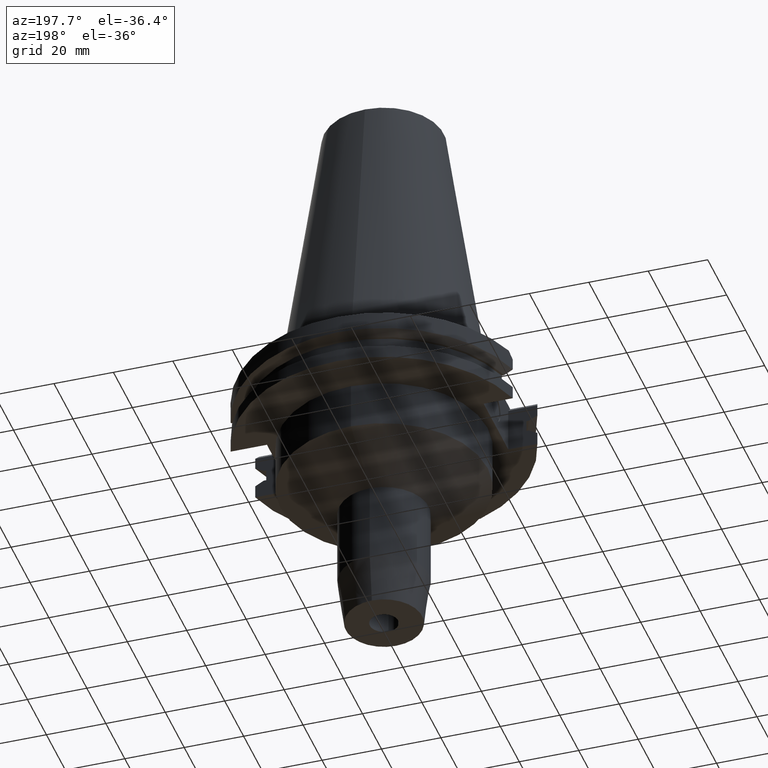
[diagram: clean part render]
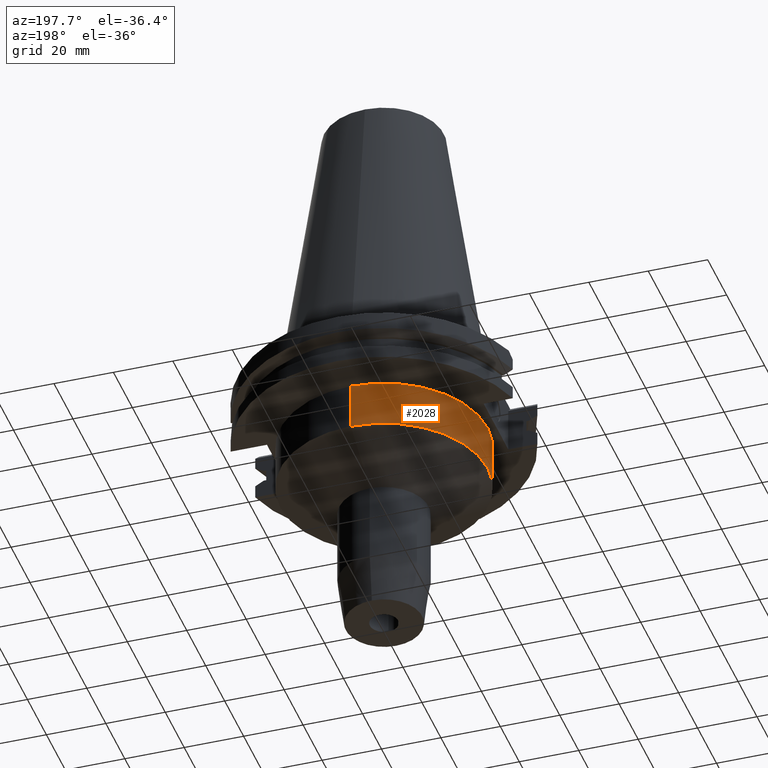
[diagram: same view with one face highlighted and labeled with its STEP entity id]
A machine part, auxiliary view. The second image highlights one B-rep face of the part: STEP entity #2028.
In plain terms, the highlighted cylindrical surface (partial cylindrical patch) has radius 34.925 mm, axis along (0, 0, -1).
Its self-contained STEP definition (entity closure, byte-faithful):
#251=CARTESIAN_POINT('',(0.E0,2.585535554700E-14,-1.905E1));
#252=DIRECTION('',(0.E0,0.E0,-1.E0));
#253=DIRECTION('',(0.E0,-1.E0,0.E0));
#254=AXIS2_PLACEMENT_3D('',#251,#252,#253);
#848=DIRECTION('',(0.E0,2.806532435918E-14,-1.E0));
#849=VECTOR('',#848,1.595E1);
#850=CARTESIAN_POINT('',(0.E0,-3.4925E1,-1.905E1));
#851=LINE('',#850,#849);
#855=DIRECTION('',(0.E0,-2.895628703725E-14,-1.E0));
#856=VECTOR('',#855,1.595E1);
#857=CARTESIAN_POINT('',(0.E0,3.4925E1,-1.905E1));
#858=LINE('',#857,#856);
#885=CARTESIAN_POINT('',(0.E0,0.E0,-3.5E1));
#886=DIRECTION('',(0.E0,0.E0,1.E0));
#887=DIRECTION('',(0.E0,1.E0,0.E0));
#888=AXIS2_PLACEMENT_3D('',#885,#886,#887);
#1272=CARTESIAN_POINT('',(0.E0,3.4925E1,-3.5E1));
#1273=VERTEX_POINT('',#1272);
#1274=CARTESIAN_POINT('',(0.E0,-3.4925E1,-3.5E1));
#1275=VERTEX_POINT('',#1274);
#1276=CARTESIAN_POINT('',(0.E0,3.4925E1,-1.905E1));
#1277=VERTEX_POINT('',#1276);
#1278=CARTESIAN_POINT('',(0.E0,-3.4925E1,-1.905E1));
#1279=VERTEX_POINT('',#1278);
#2014=CARTESIAN_POINT('',(0.E0,2.585535554700E-14,1.11125E2));
#2015=DIRECTION('',(0.E0,0.E0,-1.E0));
#2016=DIRECTION('',(0.E0,-1.E0,0.E0));
#2017=AXIS2_PLACEMENT_3D('',#2014,#2015,#2016);
#2018=CYLINDRICAL_SURFACE('',#2017,3.4925E1);
#2020=ORIENTED_EDGE('',*,*,#2019,.F.);
#2021=ORIENTED_EDGE('',*,*,#1565,.F.);
#2023=ORIENTED_EDGE('',*,*,#2022,.T.);
#2025=ORIENTED_EDGE('',*,*,#2024,.F.);
#2026=EDGE_LOOP('',(#2020,#2021,#2023,#2025));
#2027=FACE_OUTER_BOUND('',#2026,.F.);
#255=CIRCLE('',#254,3.4925E1);
#889=CIRCLE('',#888,3.4925E1);
#1565=EDGE_CURVE('',#1279,#1277,#255,.T.);
#2019=EDGE_CURVE('',#1277,#1273,#858,.T.);
#2022=EDGE_CURVE('',#1279,#1275,#851,.T.);
#2024=EDGE_CURVE('',#1273,#1275,#889,.T.);
#2028=ADVANCED_FACE('',(#2027),#2018,.T.);